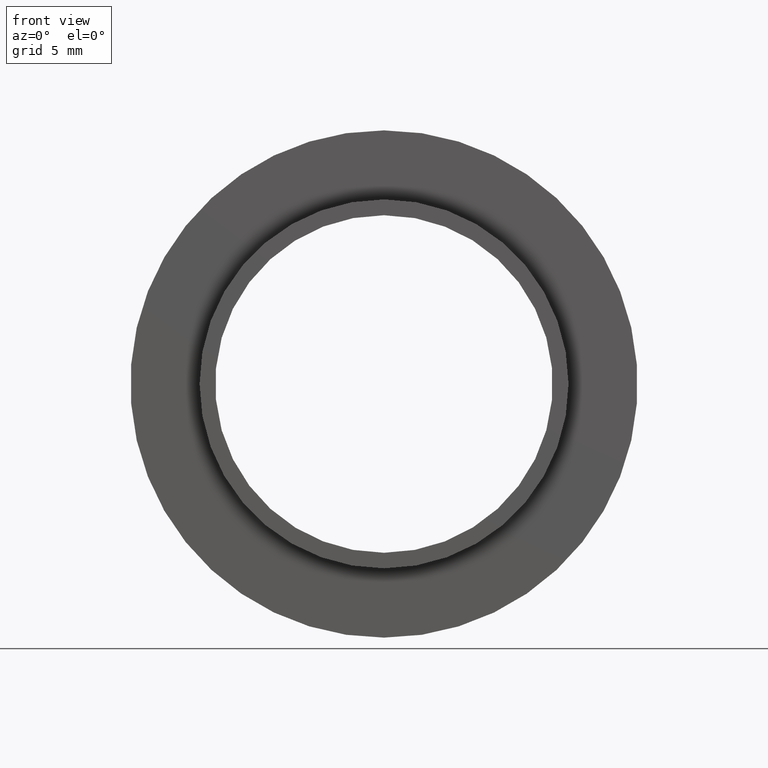
[diagram: clean part render]
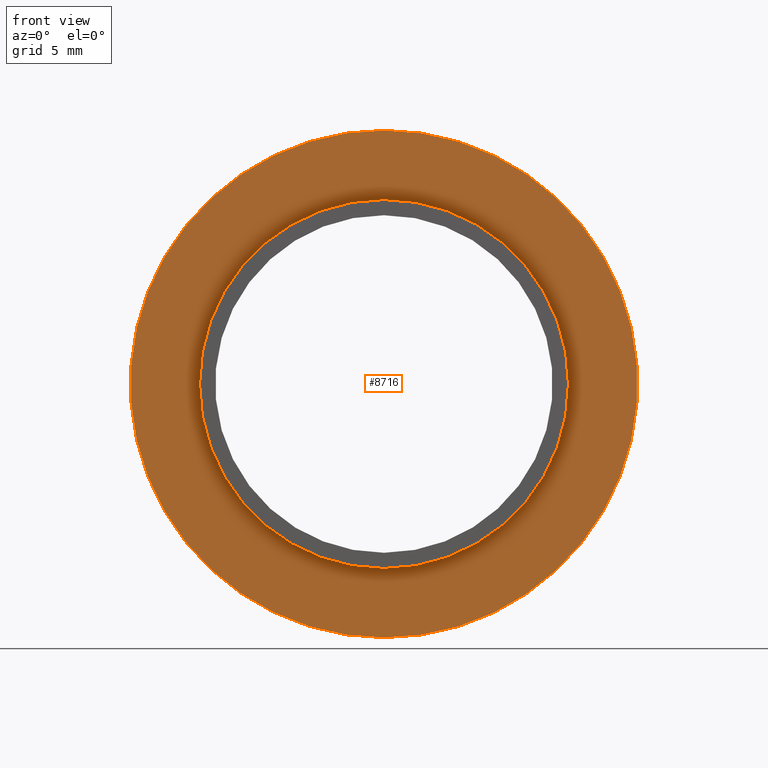
[diagram: same view with one face highlighted and labeled with its STEP entity id]
A machine part, front view. The second image highlights one B-rep face of the part: STEP entity #8716.
In plain terms, the highlighted planar face has unit normal (0, -1, -0).
Its self-contained STEP definition (entity closure, byte-faithful):
#137 = CIRCLE ( 'NONE', #2180, 10.00000000000000000 ) ;
#582 = CIRCLE ( 'NONE', #4743, 13.75000000000000000 ) ;
#1225 = CARTESIAN_POINT ( 'NONE',  ( 1.224646799147353256E-15, 3.000000000000000444, 10.00000000000000000 ) ) ;
#1776 = ORIENTED_EDGE ( 'NONE', *, *, #10619, .F. ) ;
#1825 = EDGE_LOOP ( 'NONE', ( #1776, #2802 ) ) ;
#1842 = DIRECTION ( 'NONE',  ( 0.000000000000000000, 0.000000000000000000, -1.000000000000000000 ) ) ;
#2180 = AXIS2_PLACEMENT_3D ( 'NONE', #13229, #7240, #5179 ) ;
#2738 = VERTEX_POINT ( 'NONE', #12112 ) ;
#2802 = ORIENTED_EDGE ( 'NONE', *, *, #5289, .F. ) ;
#3076 = CARTESIAN_POINT ( 'NONE',  ( 0.000000000000000000, 3.000000000000000444, 0.000000000000000000 ) ) ;
#4743 = AXIS2_PLACEMENT_3D ( 'NONE', #12615, #10490, #8553 ) ;
#5010 = ORIENTED_EDGE ( 'NONE', *, *, #8584, .T. ) ;
#5031 = DIRECTION ( 'NONE',  ( -0.000000000000000000, -1.000000000000000000, -0.000000000000000000 ) ) ;
#5098 = FACE_BOUND ( 'NONE', #1825, .T. ) ;
#5179 = DIRECTION ( 'NONE',  ( 0.000000000000000000, 0.000000000000000000, -1.000000000000000000 ) ) ;
#5289 = EDGE_CURVE ( 'NONE', #9846, #7080, #137, .T. ) ;
#5319 = CARTESIAN_POINT ( 'NONE',  ( 1.683889348827610654E-15, 3.000000000000000888, 13.75000000000000000 ) ) ;
#5344 = DIRECTION ( 'NONE',  ( 0.000000000000000000, 0.000000000000000000, -1.000000000000000000 ) ) ;
#5983 = DIRECTION ( 'NONE',  ( 0.000000000000000000, -1.000000000000000000, -0.000000000000000000 ) ) ;
#6381 = FACE_OUTER_BOUND ( 'NONE', #11745, .T. ) ;
#7080 = VERTEX_POINT ( 'NONE', #9599 ) ;
#7240 = DIRECTION ( 'NONE',  ( -0.000000000000000000, -1.000000000000000000, -0.000000000000000000 ) ) ;
#7648 = CIRCLE ( 'NONE', #10716, 13.75000000000000000 ) ;
#8009 = EDGE_CURVE ( 'NONE', #2738, #13245, #7648, .T. ) ;
#8147 = AXIS2_PLACEMENT_3D ( 'NONE', #11013, #5983, #1842 ) ;
#8553 = DIRECTION ( 'NONE',  ( 0.000000000000000000, 0.000000000000000000, -1.000000000000000000 ) ) ;
#8584 = EDGE_CURVE ( 'NONE', #13245, #2738, #582, .T. ) ;
#8716 = ADVANCED_FACE ( 'NONE', ( #6381, #5098 ), #12104, .T. ) ;
#9213 = CIRCLE ( 'NONE', #10718, 10.00000000000000000 ) ;
#9599 = CARTESIAN_POINT ( 'NONE',  ( 0.000000000000000000, 3.000000000000000444, -10.00000000000000000 ) ) ;
#9846 = VERTEX_POINT ( 'NONE', #1225 ) ;
#10490 = DIRECTION ( 'NONE',  ( -0.000000000000000000, -1.000000000000000000, -0.000000000000000000 ) ) ;
#10619 = EDGE_CURVE ( 'NONE', #7080, #9846, #9213, .T. ) ;
#10716 = AXIS2_PLACEMENT_3D ( 'NONE', #11406, #11454, #5344 ) ;
#10718 = AXIS2_PLACEMENT_3D ( 'NONE', #3076, #5031, #12264 ) ;
#11013 = CARTESIAN_POINT ( 'NONE',  ( 13.75000000000000000, 3.000000000000000888, 0.000000000000000000 ) ) ;
#11406 = CARTESIAN_POINT ( 'NONE',  ( 0.000000000000000000, 3.000000000000000888, 0.000000000000000000 ) ) ;
#11454 = DIRECTION ( 'NONE',  ( -0.000000000000000000, -1.000000000000000000, -0.000000000000000000 ) ) ;
#11745 = EDGE_LOOP ( 'NONE', ( #12173, #5010 ) ) ;
#12104 = PLANE ( 'NONE',  #8147 ) ;
#12112 = CARTESIAN_POINT ( 'NONE',  ( 0.000000000000000000, 3.000000000000000888, -13.75000000000000000 ) ) ;
#12173 = ORIENTED_EDGE ( 'NONE', *, *, #8009, .T. ) ;
#12264 = DIRECTION ( 'NONE',  ( 0.000000000000000000, 0.000000000000000000, -1.000000000000000000 ) ) ;
#12615 = CARTESIAN_POINT ( 'NONE',  ( 0.000000000000000000, 3.000000000000000888, 0.000000000000000000 ) ) ;
#13229 = CARTESIAN_POINT ( 'NONE',  ( 0.000000000000000000, 3.000000000000000444, 0.000000000000000000 ) ) ;
#13245 = VERTEX_POINT ( 'NONE', #5319 ) ;